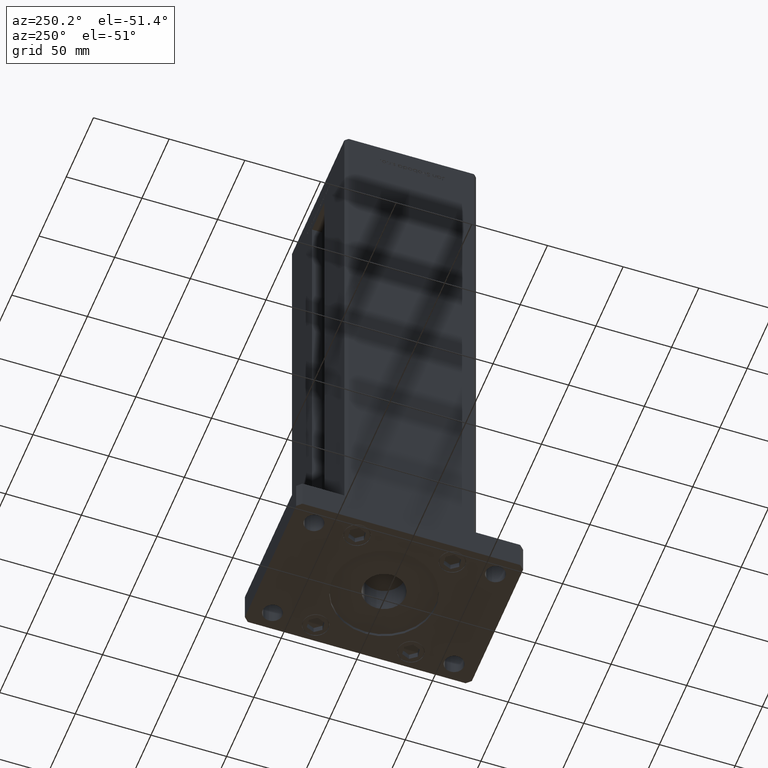
[diagram: clean part render]
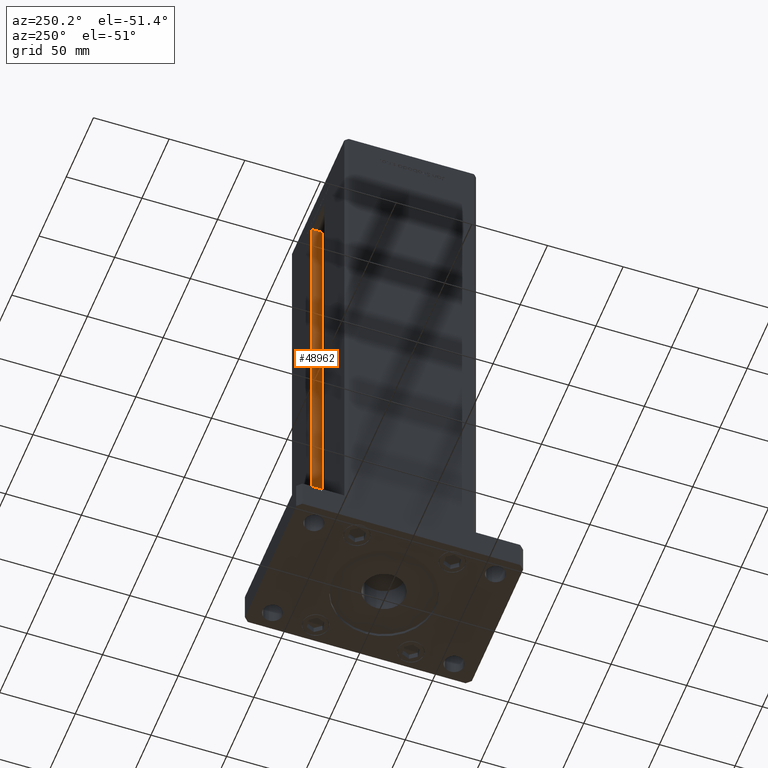
[diagram: same view with one face highlighted and labeled with its STEP entity id]
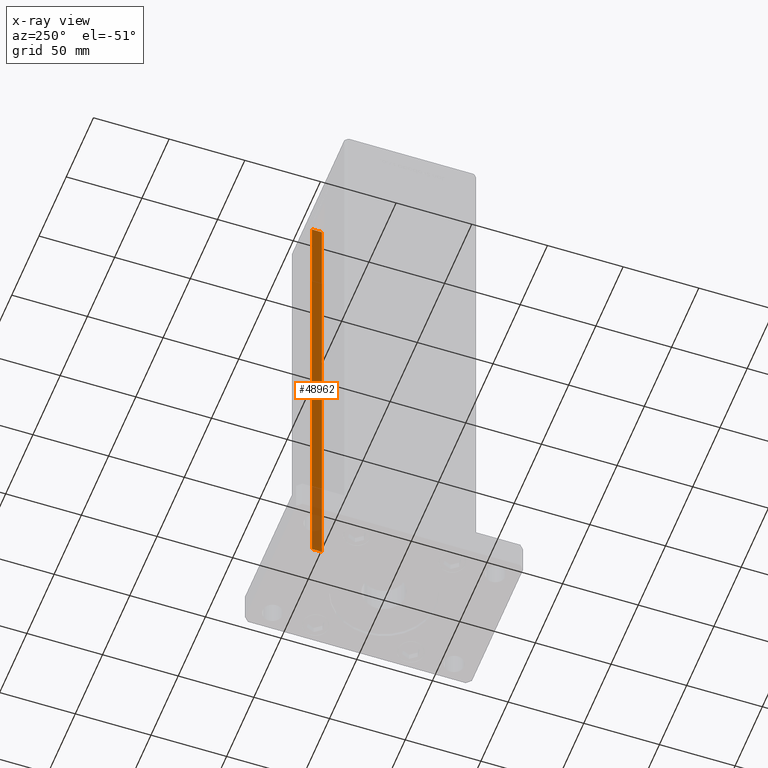
[diagram: x-ray of the same camera — body ghosted, the highlighted face saturated]
A machine part, auxiliary view. The second image highlights one B-rep face of the part: STEP entity #48962.
The next image is the same camera in x-ray: the body ghosted, the highlighted face saturated — about 18% of this face is hidden behind the body in this view.
In plain terms, the highlighted planar face has unit normal (1, 0, 0).
Its self-contained STEP definition (entity closure, byte-faithful):
#1890 = VERTEX_POINT ( 'NONE', #52839 ) ;
#2574 = DIRECTION ( 'NONE',  ( -0.000000000000000000, -1.000000000000000000, 0.000000000000000000 ) ) ;
#6492 = LINE ( 'NONE', #28373, #19394 ) ;
#6788 = AXIS2_PLACEMENT_3D ( 'NONE', #25778, #42492, #26607 ) ;
#7141 = VERTEX_POINT ( 'NONE', #18539 ) ;
#7573 = DIRECTION ( 'NONE',  ( -0.000000000000000000, -0.000000000000000000, 1.000000000000000000 ) ) ;
#11004 = CARTESIAN_POINT ( 'NONE',  ( 11.24999999999999822, 43.50000000000000000, 0.000000000000000000 ) ) ;
#12496 = LINE ( 'NONE', #20147, #48201 ) ;
#13942 = VERTEX_POINT ( 'NONE', #45541 ) ;
#14039 = DIRECTION ( 'NONE',  ( -0.000000000000000000, -0.000000000000000000, 1.000000000000000000 ) ) ;
#14968 = ORIENTED_EDGE ( 'NONE', *, *, #53842, .F. ) ;
#15876 = EDGE_CURVE ( 'NONE', #7141, #13942, #6492, .T. ) ;
#17840 = FACE_OUTER_BOUND ( 'NONE', #53700, .T. ) ;
#18539 = CARTESIAN_POINT ( 'NONE',  ( 11.24999999999999822, 36.99999999999999289, 0.000000000000000000 ) ) ;
#18794 = VERTEX_POINT ( 'NONE', #43649 ) ;
#18914 = ORIENTED_EDGE ( 'NONE', *, *, #36514, .F. ) ;
#19394 = VECTOR ( 'NONE', #39876, 1000.000000000000000 ) ;
#20147 = CARTESIAN_POINT ( 'NONE',  ( 11.24999999999999822, 36.99999999999999289, 0.000000000000000000 ) ) ;
#22831 = ORIENTED_EDGE ( 'NONE', *, *, #27368, .T. ) ;
#25778 = CARTESIAN_POINT ( 'NONE',  ( 11.24999999999999822, 36.99999999999999289, 0.000000000000000000 ) ) ;
#26607 = DIRECTION ( 'NONE',  ( 0.000000000000000000, 0.000000000000000000, -1.000000000000000000 ) ) ;
#27368 = EDGE_CURVE ( 'NONE', #7141, #18794, #12496, .T. ) ;
#28373 = CARTESIAN_POINT ( 'NONE',  ( 11.24999999999999822, 36.99999999999999289, 0.000000000000000000 ) ) ;
#32199 = ORIENTED_EDGE ( 'NONE', *, *, #15876, .F. ) ;
#34690 = CARTESIAN_POINT ( 'NONE',  ( 11.24999999999999822, 0.000000000000000000, 318.5000000000000000 ) ) ;
#35059 = VECTOR ( 'NONE', #2574, 1000.000000000000000 ) ;
#35248 = VECTOR ( 'NONE', #14039, 1000.000000000000000 ) ;
#36514 = EDGE_CURVE ( 'NONE', #13942, #1890, #52093, .T. ) ;
#38791 = LINE ( 'NONE', #34690, #35059 ) ;
#39876 = DIRECTION ( 'NONE',  ( 0.000000000000000000, 1.000000000000000000, 0.000000000000000000 ) ) ;
#42492 = DIRECTION ( 'NONE',  ( 1.000000000000000000, -0.000000000000000000, 0.000000000000000000 ) ) ;
#42760 = PLANE ( 'NONE',  #6788 ) ;
#43649 = CARTESIAN_POINT ( 'NONE',  ( 11.24999999999999822, 36.99999999999999289, 318.5000000000000000 ) ) ;
#45541 = CARTESIAN_POINT ( 'NONE',  ( 11.24999999999999822, 43.50000000000000000, 0.000000000000000000 ) ) ;
#48201 = VECTOR ( 'NONE', #7573, 1000.000000000000000 ) ;
#48962 = ADVANCED_FACE ( 'NONE', ( #17840 ), #42760, .F. ) ;
#52093 = LINE ( 'NONE', #11004, #35248 ) ;
#52839 = CARTESIAN_POINT ( 'NONE',  ( 11.24999999999999112, 43.50000000000000000, 318.5000000000000000 ) ) ;
#53700 = EDGE_LOOP ( 'NONE', ( #18914, #32199, #22831, #14968 ) ) ;
#53842 = EDGE_CURVE ( 'NONE', #1890, #18794, #38791, .T. ) ;